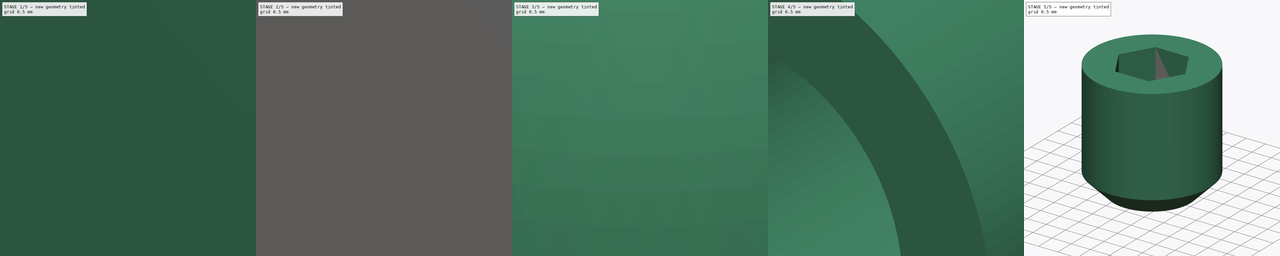
[diagram: build sequence overview — one tinted view per stage of 5, left to right]
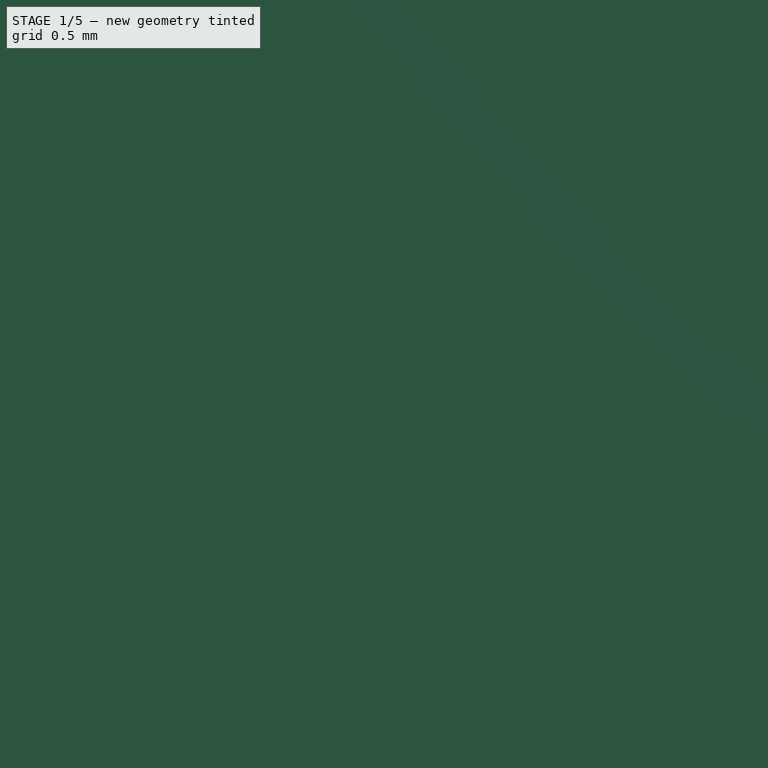
[diagram: stage 1 of 5 — iso view after this stage's code; geometry added in this stage tinted green]
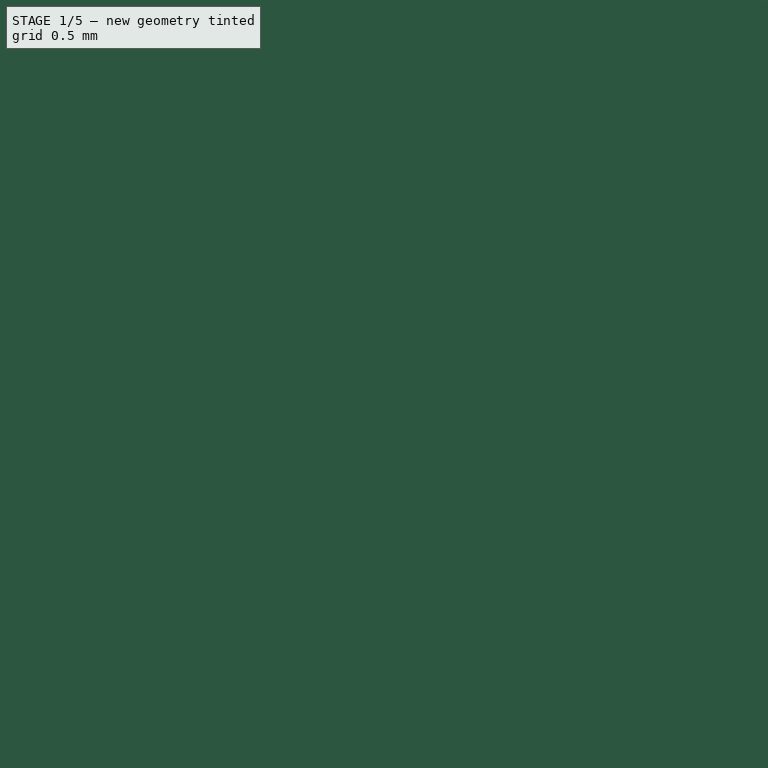
[diagram: stage 1 of 5 — front view after this stage's code; geometry added in this stage tinted green]
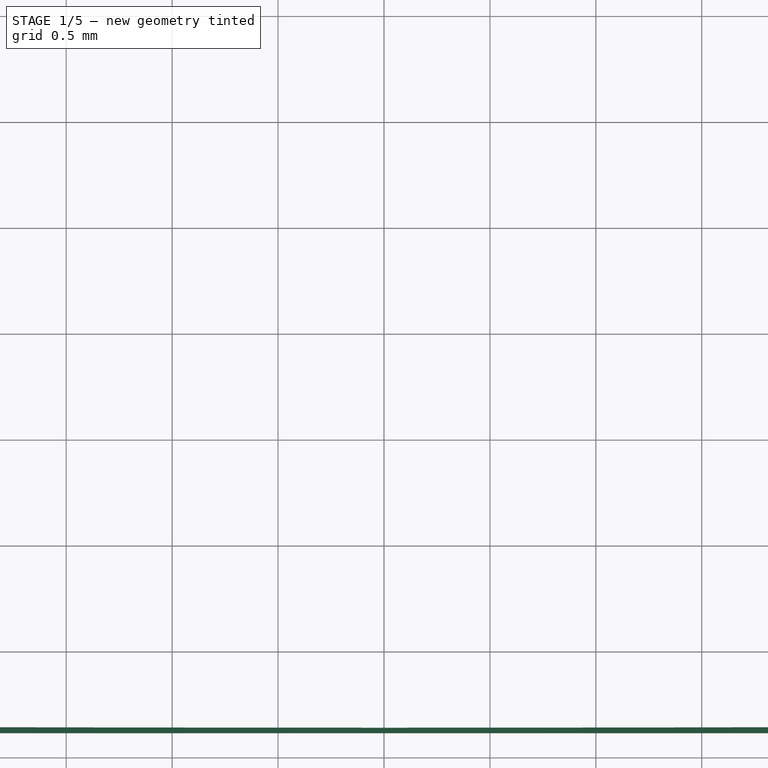
[diagram: stage 1 of 5 — top view after this stage's code; geometry added in this stage tinted green]
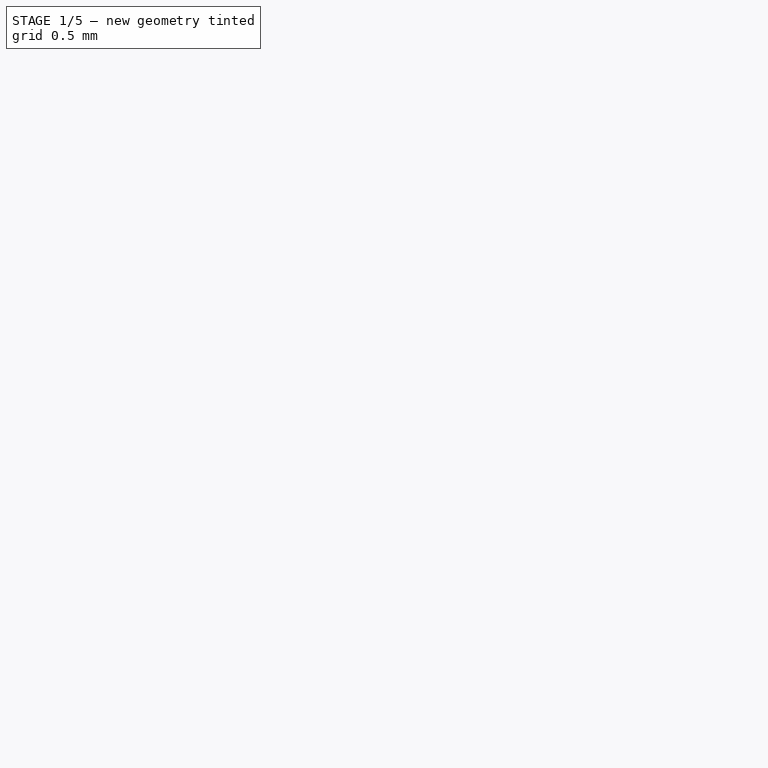
[diagram: stage 1 of 5 — right view after this stage's code; geometry added in this stage tinted green]
FCSTD DOCUMENT  (FreeCAD 2022.709R28846 (Git))
Label: KP08
License: All rights reserved
LicenseURL: http://en.wikipedia.org/wiki/All_rights_reserved
objects: Sketcher::SketchObject×18, PartDesign::Pocket×11, PartDesign::Mirrored×3, PartDesign::Body×3, PartDesign::SubShapeBinder×3, PartDesign::Pad×2, PartDesign::Chamfer×2, PartDesign::Groove×2, PartDesign::Revolution×2, PartDesign::Hole×1, PartDesign::Plane×1, PartDesign::PolarPattern×1, App::Link×1, App::Part×1
note: 97 computed .brp shape members not serialized (recipe doc carries the construction recipe); baked Part::Feature solids carry a one-line shape summary decoded from their .brp

FEATURE [Sketcher::SketchObject] Sketch
  ArcFitTolerance = 1e-06
  AttachmentSupport = -> [XZ_Plane]
  FullyConstrained = true
  MapMode = 5
  Placement = pos=(0,0,0) rot=(1,0,0;1.5708rad)
  Support = -> [XZ_Plane]
  TreeRank = 14
  sketch-geometry (9):
    g0: LineSegment StartX=-27.5 StartY=0 StartZ=0 EndX=27.5 EndY=0 EndZ=0
    g1: LineSegment StartX=27.5 StartY=0 StartZ=0 EndX=27.5 EndY=5 EndZ=0
    g2: LineSegment StartX=27.5 StartY=5 StartZ=0 EndX=14.5 EndY=5 EndZ=0
    g3: LineSegment StartX=14.5 StartY=5 StartZ=0 EndX=13.4407 EndY=16.264 EndZ=0
    g4: LineSegment StartX=-13.4407 StartY=16.264 StartZ=0 EndX=-14.5 EndY=5 EndZ=0
    g5: LineSegment StartX=-14.5 StartY=5 StartZ=0 EndX=-27.5 EndY=5 EndZ=0
    g6: LineSegment StartX=-27.5 StartY=5 StartZ=0 EndX=-27.5 EndY=0 EndZ=0
    g7: ArcOfCircle CenterX=2e-16 CenterY=15 CenterZ=0 NormalX=0 NormalY=0 NormalZ=1 AngleXU=0 Radius=13.5 StartAngle=0.0937653 EndAngle=3.04783
    g8: GeomPoint [constr] X=0 Y=28.5 Z=0
  constraints (24):
    c: PointOnObject(g0,g-1)
    c: PointOnObject(g0,g-1)
    c: Coincident(g0,g1)
    c: Vertical(g1)
    c: Coincident(g1,g2)
    c: Horizontal(g2)
    c: Coincident(g2,g3)
    c: Coincident(g4,g5)
    c: Coincident(g5,g6)
    c: Coincident(g6,g0)
    c: Vertical(g6)
    c: Coincident(g7,g4)
    c: Coincident(g7,g3)
    c: Tangent(g7,g3)
    c: Symmetric(g4,g3,g-2)
    c: Symmetric(g5,g1,g-2)
    c: DistanceX(g0,g0) = 55
    c: PointOnObject(g8,g7)
    c: PointOnObject(g8,g-2)
    c: DistanceY(g0,g8) = 28.5
    c: Symmetric(g4,g2,g-2)
    c: DistanceY(g1,g1) = 5
    c: DistanceX(g4,g2) = 29
    c: Diameter(g7) = 27
FEATURE [PartDesign::Pad] Pad
  ClaimChildren = false
  Direction = (1,1,1)
  Fit = 0
  FitJoin = 0
  InnerFit = 0
  InnerFitJoin = 0
  InnerTaperAngle = 0
  InnerTaperAngleRev = 0
  Length = 13
  Length2 = 100
  Linearize = true
  Midplane = true
  NewSolid = false
  Placement = pos=(0,0,0) rot=(1,0,0;1.5708rad)
  Profile = -> Sketch
  Suppress = false
  TreeRank = 15
  Type = 0
  _ProfileBasedVersion = 1
FEATURE [Sketcher::SketchObject] Sketch001
  ArcFitTolerance = 1e-06
  AttachmentSupport = -> [YZ_Plane]
  ExternalGeometry = -> [Pad]
  FullyConstrained = true
  MapMode = 5
  Placement = pos=(0,0,0) rot=(0.57735,0.57735,0.57735;2.0944rad)
  Support = -> [YZ_Plane]
  TreeRank = 16
  sketch-geometry (4):
    g0: LineSegment StartX=-6.5 StartY=5 StartZ=0 EndX=-4.75 EndY=16.264 EndZ=0
    g1: LineSegment StartX=-4.75 StartY=16.264 StartZ=0 EndX=-4.75 EndY=28.5 EndZ=0
    g2: LineSegment StartX=-4.75 StartY=28.5 StartZ=0 EndX=-6.5 EndY=28.5 EndZ=0
    g3: LineSegment StartX=-6.5 StartY=28.5 StartZ=0 EndX=-6.5 EndY=5 EndZ=0
  constraints (10):
    c: Coincident(g0,g-4)
    c: Coincident(g0,g1)
    c: Vertical(g1)
    c: Coincident(g1,g2)
    c: Coincident(g2,g-3)
    c: Horizontal(g2)
    c: Coincident(g2,g3)
    c: Coincident(g3,g0)
    c: Horizontal(g-3,g0)
    c: DistanceX(g1,g-1) = 4.75
FEATURE [PartDesign::Pocket] Pocket
  BaseFeature = -> Pad
  ClaimChildren = false
  Fit = 0
  FitJoin = 0
  InnerFit = 0
  InnerFitJoin = 0
  InnerTaperAngle = 0
  InnerTaperAngleRev = 0
  Length = 5
  Length2 = 100
  Linearize = true
  Midplane = true
  NewSolid = false
  Placement = pos=(0,0,0) rot=(1,0,0;1.5708rad)
  Profile = -> Sketch001
  Refine = true
  Suppress = false
  TreeRank = 17
  Type = 1
  _ProfileBasedVersion = 1
FEATURE [Sketcher::SketchObject] Sketch002
  ArcFitTolerance = 1e-06
  AttachmentSupport = -> [Pocket]
  ExternalGeometry = -> [Pocket]
  FullyConstrained = true
  MapMode = 5
  Placement = pos=(0,-6.5,7.2e-15) rot=(1,0,0;1.5708rad)
  Support = -> [Pocket]
  TreeRank = 18
  sketch-geometry (4):
    g0: ArcOfCircle CenterX=2e-16 CenterY=15 CenterZ=0 NormalX=0 NormalY=0 NormalZ=1 AngleXU=0 Radius=12 StartAngle=0.0937681 EndAngle=3.04782
    g1: LineSegment StartX=-11.9473 StartY=16.1236 StartZ=0 EndX=-13.4636 EndY=0 EndZ=0
    g2: LineSegment StartX=13.4636 StartY=0 StartZ=0 EndX=11.9473 EndY=16.1236 EndZ=0
    g3: LineSegment StartX=-13.4636 StartY=0 StartZ=0 EndX=13.4636 EndY=0 EndZ=0
  constraints (11):
    c: Coincident(g0,g-3)
    c: Diameter(g0) = 24
    c: Coincident(g1,g0)
    c: PointOnObject(g1,g-1)
    c: Coincident(g2,g0)
    c: Symmetric(g0,g0,g-2)
    c: Tangent(g1,g0)
    c: Parallel(g-4,g1)
    c: Symmetric(g1,g2,g-2)
    c: Coincident(g3,g1)
    c: Coincident(g3,g2)
FEATURE [PartDesign::Pocket] Pocket001
  BaseFeature = -> Pocket
  ClaimChildren = false
  Fit = 0
  FitJoin = 0
  InnerFit = 0
  InnerFitJoin = 0
  InnerTaperAngle = 0
  InnerTaperAngleRev = 0
  Length = 0
  Length2 = 100
  Linearize = true
  NewSolid = false
  Placement = pos=(0,0,0) rot=(1,0,0;1.5708rad)
  Profile = -> Sketch002
  Refine = true
  Suppress = false
  TreeRank = 19
  Type = 3
  UpToFace = -> Pocket [Face12]
  _ProfileBasedVersion = 1
FEATURE [Sketcher::SketchObject] Sketch003
  ArcFitTolerance = 1e-06
  AttachmentSupport = -> [Pocket001]
  ExternalGeometry = -> [Pocket001]
  FullyConstrained = false
  MapMode = 5
  Placement = pos=(-8e-16,-4.75,5.8e-15) rot=(1,0,0;1.5708rad)
  Support = -> [Pocket001]
  TreeRank = 20
  sketch-geometry (1):
    g0: Circle CenterX=0 CenterY=15.2964 CenterZ=0 NormalX=0 NormalY=0 NormalZ=1 AngleXU=0 Radius=11.9723
  constraints (2):
    c: PointOnObject(g0,g-2)
    c: Tangent(g-4,g0)
FEATURE [PartDesign::Pocket] Pocket002
  BaseFeature = -> Pocket001
  ClaimChildren = false
  Fit = 0
  FitJoin = 0
  InnerFit = 0
  InnerFitJoin = 0
  InnerTaperAngle = 0
  InnerTaperAngleRev = 0
  Length = 0.9
  Length2 = 100
  Linearize = true
  NewSolid = false
  Placement = pos=(0,0,0) rot=(1,0,0;1.5708rad)
  Profile = -> Sketch003
  Refine = true
  Suppress = false
  TreeRank = 21
  Type = 0
  _ProfileBasedVersion = 1
FEATURE [Sketcher::SketchObject] Sketch004
  ArcFitTolerance = 1e-06
  AttachmentSupport = -> [Pocket002]
  ExternalGeometry = -> [Pocket002]
  FullyConstrained = true
  MapMode = 5
  Placement = pos=(-8e-16,-4.75,7.9e-15) rot=(1,0,0;1.5708rad)
  Support = -> [Pocket002]
  TreeRank = 22
  sketch-geometry (4):
    g0: ArcOfCircle CenterX=1e-15 CenterY=15 CenterZ=0 NormalX=0 NormalY=0 NormalZ=1 AngleXU=0 Radius=13.5 StartAngle=3.52371 EndAngle=5.90107
    g1: LineSegment StartX=-12.5264 StartY=9.96607 StartZ=0 EndX=-13.4636 EndY=3.6e-15 EndZ=0
    g2: LineSegment StartX=-13.4636 StartY=3.6e-15 StartZ=0 EndX=13.4636 EndY=-3.6e-15 EndZ=0
    g3: LineSegment StartX=13.4636 StartY=-3.6e-15 StartZ=0 EndX=12.5264 EndY=9.96607 EndZ=0
  constraints (10):
    c: Coincident(g0,g-3)
    c: Equal(g-3,g0)
    c: Symmetric(g0,g0,g-2)
    c: Coincident(g0,g1)
    c: Coincident(g1,g2)
    c: Coincident(g2,g3)
    c: Coincident(g3,g0)
    c: Symmetric(g1,g2,g-1)
    c: Coincident(g1,g-4)
    c: Parallel(g1,g-4)
FEATURE [PartDesign::Pocket] Pocket003
  BaseFeature = -> Pocket002
  ClaimChildren = false
  Fit = 0
  FitJoin = 0
  InnerFit = 0
  InnerFitJoin = 0
  InnerTaperAngle = 0
  InnerTaperAngleRev = 0
  Length = 0
  Length2 = 100
  Linearize = true
  NewSolid = false
  Offset = -1.4
  Placement = pos=(0,0,0) rot=(1,0,0;1.5708rad)
  Profile = -> Sketch004
  Refine = true
  Suppress = false
  TreeRank = 23
  Type = 3
  UpToFace = -> XZ_Plane
  _ProfileBasedVersion = 1
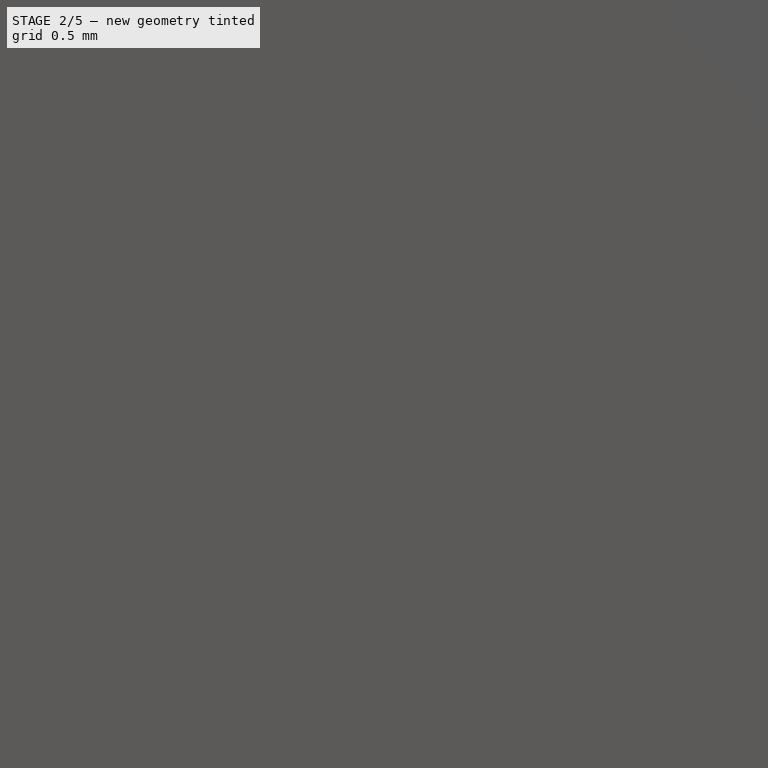
[diagram: stage 2 of 5 — iso view after this stage's code; geometry added in this stage tinted green]
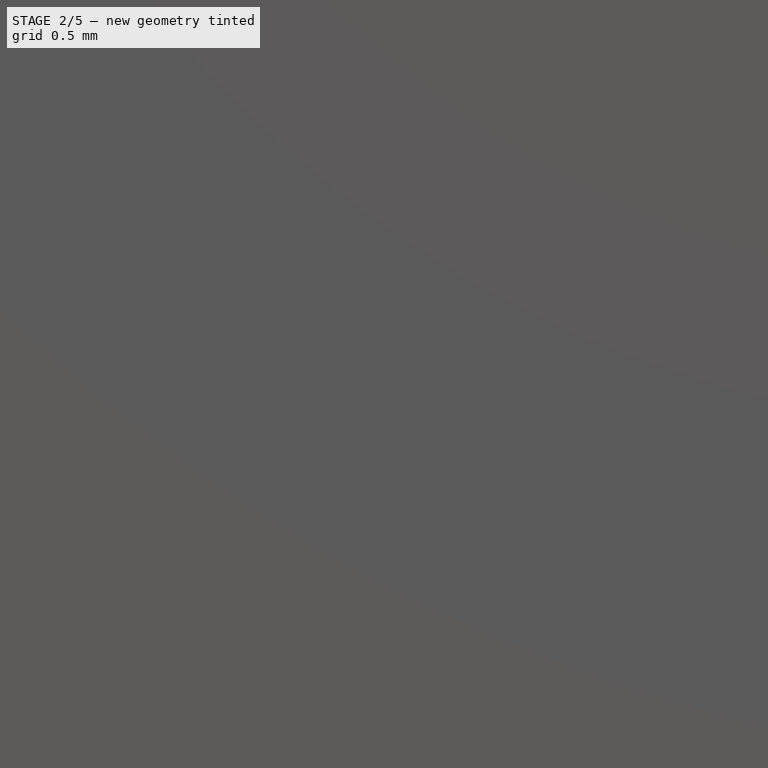
[diagram: stage 2 of 5 — front view after this stage's code; geometry added in this stage tinted green]
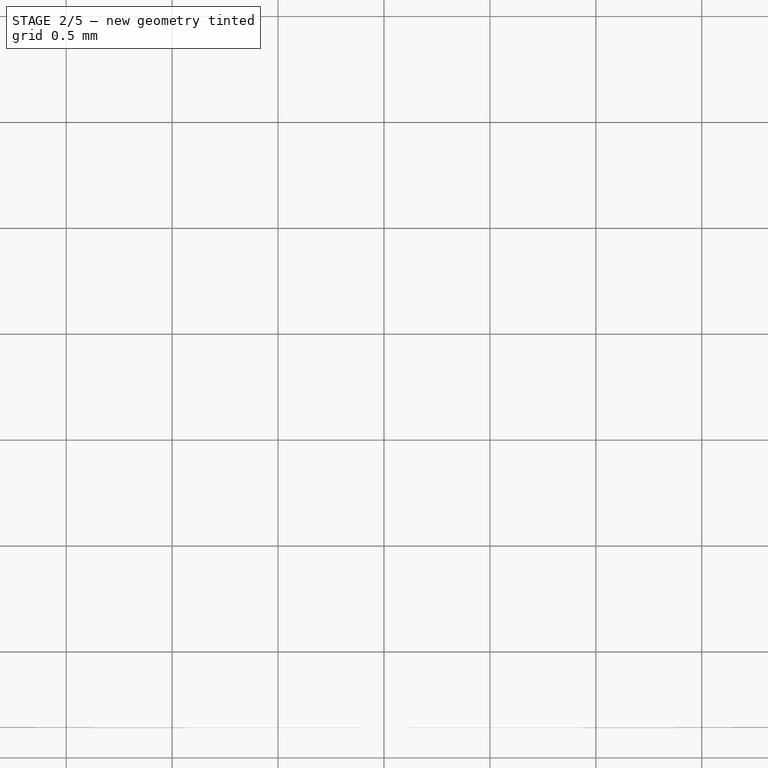
[diagram: stage 2 of 5 — top view after this stage's code; geometry added in this stage tinted green]
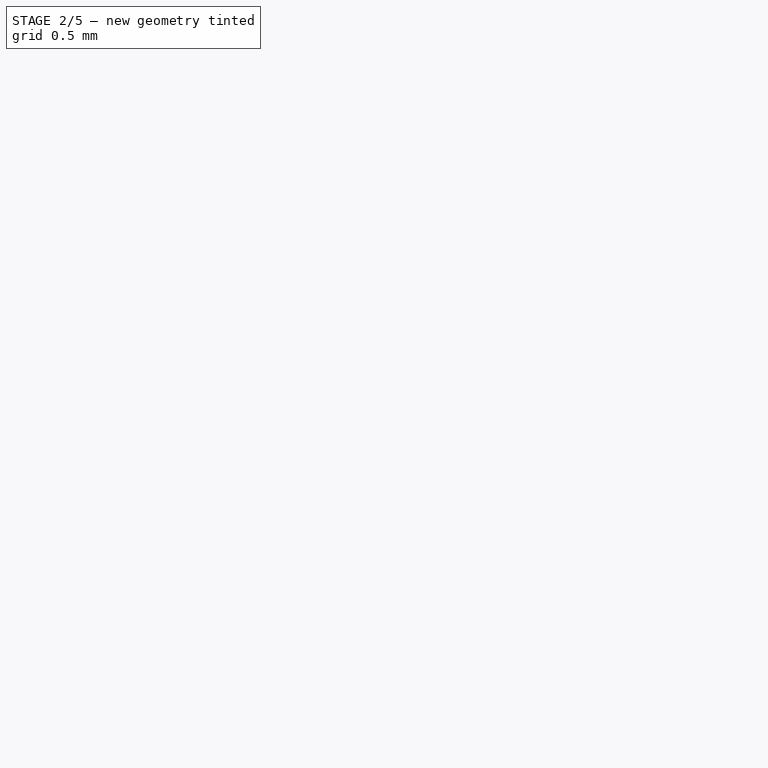
[diagram: stage 2 of 5 — right view after this stage's code; geometry added in this stage tinted green]
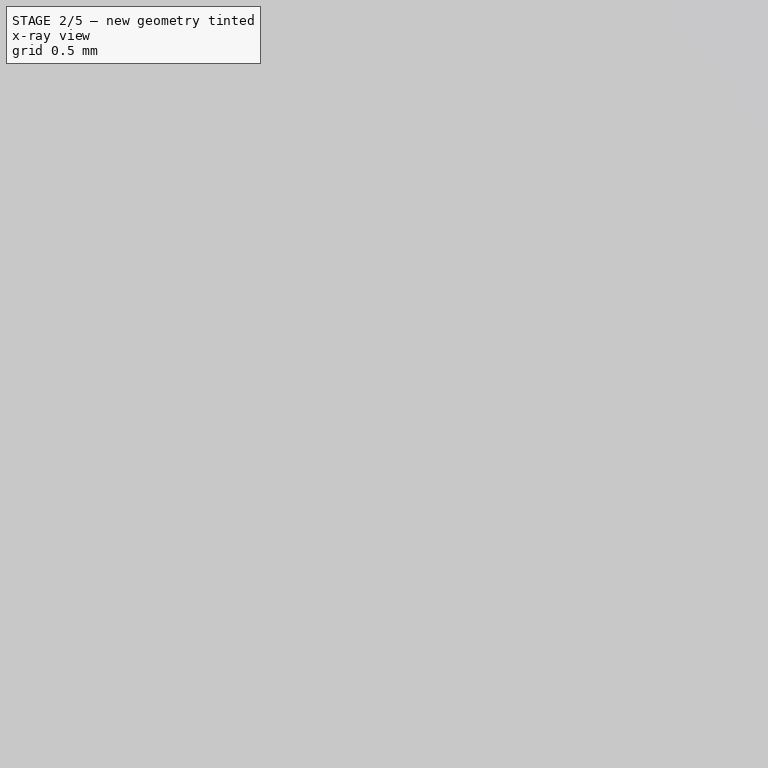
[diagram: stage 2 of 5 — x-ray composite at the iso view; earlier geometry ghosted, this stage's added geometry solid]
FEATURE [PartDesign::Mirrored] Mirrored
  BaseFeature = -> Pocket003
  CopyShape = false
  MirrorPlane = -> XZ_Plane
  NewSolid = false
  OriginalSubs = -> [Pocket003,Pocket002,Pocket001,Pocket]
  Originals = -> [Pocket003,Pocket002,Pocket001,Pocket]
  ParallelTransform = true
  Placement = pos=(0,0,0) rot=(1,0,0;1.5708rad)
  Refine = true
  SubTransform = true
  Suppress = false
  TreeRank = 24
FEATURE [Sketcher::SketchObject] Sketch005
  ArcFitTolerance = 1e-06
  AttachmentSupport = -> [Mirrored]
  ExternalGeometry = -> [Mirrored]
  FullyConstrained = true
  MapMode = 5
  Placement = pos=(0,-1.4,6e-16) rot=(1,0,0;1.5708rad)
  Support = -> [Mirrored]
  TreeRank = 25
  sketch-geometry (4):
    g0: LineSegment StartX=-13.3225 StartY=1.5 StartZ=0 EndX=13.3225 EndY=1.5 EndZ=0
    g1: LineSegment StartX=-13.4636 StartY=0 StartZ=0 EndX=13.4636 EndY=0 EndZ=0
    g2: LineSegment StartX=-13.3225 StartY=1.5 StartZ=0 EndX=-13.4636 EndY=0 EndZ=0
    g3: LineSegment StartX=13.3225 StartY=1.5 StartZ=0 EndX=13.4636 EndY=0 EndZ=0
  constraints (12):
    c: Horizontal(g0)
    c: PointOnObject(g1,g-1)
    c: Horizontal(g1)
    c: Coincident(g2,g0)
    c: Coincident(g2,g1)
    c: Coincident(g3,g0)
    c: Coincident(g3,g1)
    c: Parallel(g2,g-4)
    c: Parallel(g3,g-5)
    c: PointOnObject(g0,g-4)
    c: PointOnObject(g0,g-5)
    c: Tangent(g0,g-3)
FEATURE [PartDesign::Pocket] Pocket004
  BaseFeature = -> Mirrored
  ClaimChildren = false
  Fit = 0
  FitJoin = 0
  InnerFit = 0
  InnerFitJoin = 0
  InnerTaperAngle = 0
  InnerTaperAngleRev = 0
  Length = 5
  Length2 = 100
  Linearize = true
  NewSolid = false
  Placement = pos=(0,0,0) rot=(1,0,0;1.5708rad)
  Profile = -> Sketch005
  Refine = true
  Suppress = false
  TreeRank = 26
  Type = 1
  _ProfileBasedVersion = 1
FEATURE [Sketcher::SketchObject] Sketch006
  ArcFitTolerance = 1e-06
  AttachmentSupport = -> [Pocket004]
  ExternalGeometry = -> [Pocket004]
  FullyConstrained = true
  MapMode = 5
  Placement = pos=(0,0,0) rot=(1,0,0;3.14159rad)
  Support = -> [Pocket004]
  TreeRank = 27
  sketch-geometry (4):
    g0: LineSegment StartX=-25.5 StartY=4.5 StartZ=0 EndX=-15.4636 EndY=4.5 EndZ=0
    g1: LineSegment StartX=-15.4636 StartY=4.5 StartZ=0 EndX=-15.4636 EndY=-4.5 EndZ=0
    g2: LineSegment StartX=-15.4636 StartY=-4.5 StartZ=0 EndX=-25.5 EndY=-4.5 EndZ=0
    g3: LineSegment StartX=-25.5 StartY=-4.5 StartZ=0 EndX=-25.5 EndY=4.5 EndZ=0
  constraints (11):
    c: Coincident(g0,g1)
    c: Coincident(g1,g2)
    c: Coincident(g2,g3)
    c: Coincident(g3,g0)
    c: Horizontal(g0)
    c: Horizontal(g2)
    c: Vertical(g3)
    c: Symmetric(g0,g1,g-1)
    c: DistanceX(g0,g-3) = 2
    c: DistanceY(g0,g-3) = 2
    c: DistanceX(g-4,g2) = 2
FEATURE [PartDesign::Pocket] Pocket005
  BaseFeature = -> Pocket004
  ClaimChildren = false
  Fit = 0
  FitJoin = 0
  InnerFit = 0
  InnerFitJoin = 0
  InnerTaperAngle = 0
  InnerTaperAngleRev = 0
  Length = 3
  Length2 = 100
  Linearize = true
  NewSolid = false
  Placement = pos=(0,0,0) rot=(1,0,0;1.5708rad)
  Profile = -> Sketch006
  Suppress = false
  TreeRank = 28
  Type = 0
  _ProfileBasedVersion = 1
FEATURE [Sketcher::SketchObject] Sketch007
  ArcFitTolerance = 1e-06
  AttachmentSupport = -> [Pocket005]
  FullyConstrained = true
  MapMode = 5
  Placement = pos=(0,1.67e-14,5) rot=(0,0,1;3.14159rad)
  Support = -> [Pocket005]
  TreeRank = 29
  sketch-geometry (1):
    g0: Circle CenterX=21 CenterY=0 CenterZ=0 NormalX=0 NormalY=0 NormalZ=1 AngleXU=0 Radius=2.75
  constraints (3):
    c: PointOnObject(g0,g-1)
    c: Diameter(g0) = 5.5
    c: DistanceX(g-1,g0) = 21
FEATURE [PartDesign::Hole] Hole
  BaseFeature = -> Pocket005
  ClaimChildren = false
  CustomThreadClearance = 0
  Depth = 25
  DepthType = 1
  Diameter = 5.5
  DrillForDepth = false
  DrillPoint = 1
  DrillPointAngle = 118
  Fit = 0
  FitJoin = 0
  HoleCutCountersinkAngle = 90
  HoleCutCustomValues = false
  HoleCutDepth = 0
  HoleCutDiameter = 6.1
  HoleCutType = 0
  InnerFit = 0
  InnerFitJoin = 0
  ModelThread = false
  NewSolid = false
  Placement = pos=(0,0,0) rot=(1,0,0;1.5708rad)
  Profile = -> Sketch007
  Suppress = false
  Tapered = false
  TaperedAngle = 90
  ThreadClass = 0
  ThreadDepth = 127.86
  ThreadDepthType = 0
  ThreadDirection = 0
  ThreadFit = 0
  ThreadSize = 0
  ThreadType = 0
  Threaded = false
  TreeRank = 30
  UseCustomThreadClearance = false
  _ProfileBasedVersion = 1
FEATURE [PartDesign::Chamfer] Chamfer
  Angle = 45
  Base = -> Hole [Edge88,Edge85]
  BaseFeature = -> Hole
  ChamferType = 0
  FlipDirection = false
  NewSolid = false
  Placement = pos=(0,0,0) rot=(1,0,0;1.5708rad)
  Size = 2
  Size2 = 1
  SupportTransform = false
  Suppress = false
  TreeRank = 31
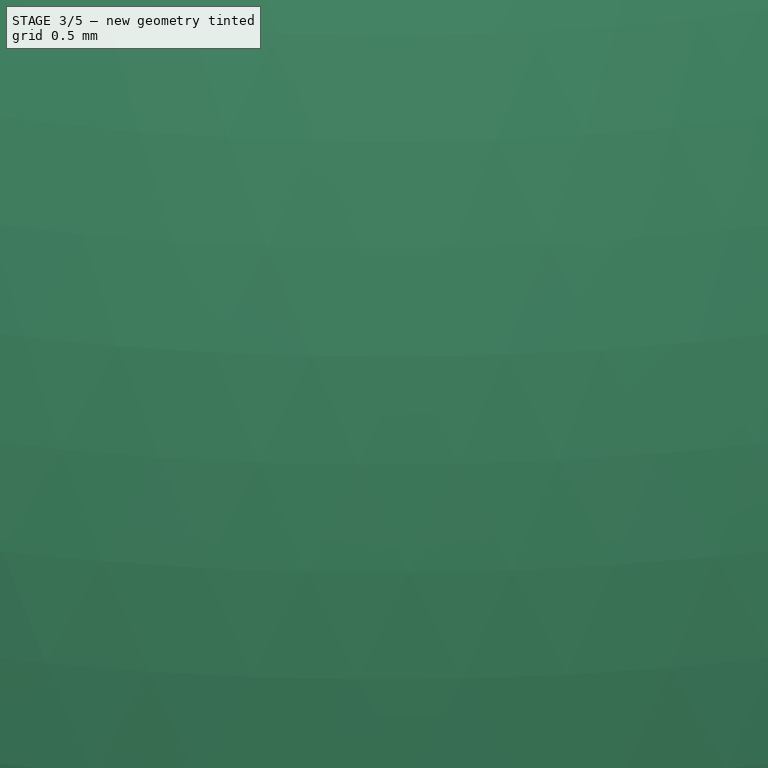
[diagram: stage 3 of 5 — iso view after this stage's code; geometry added in this stage tinted green]
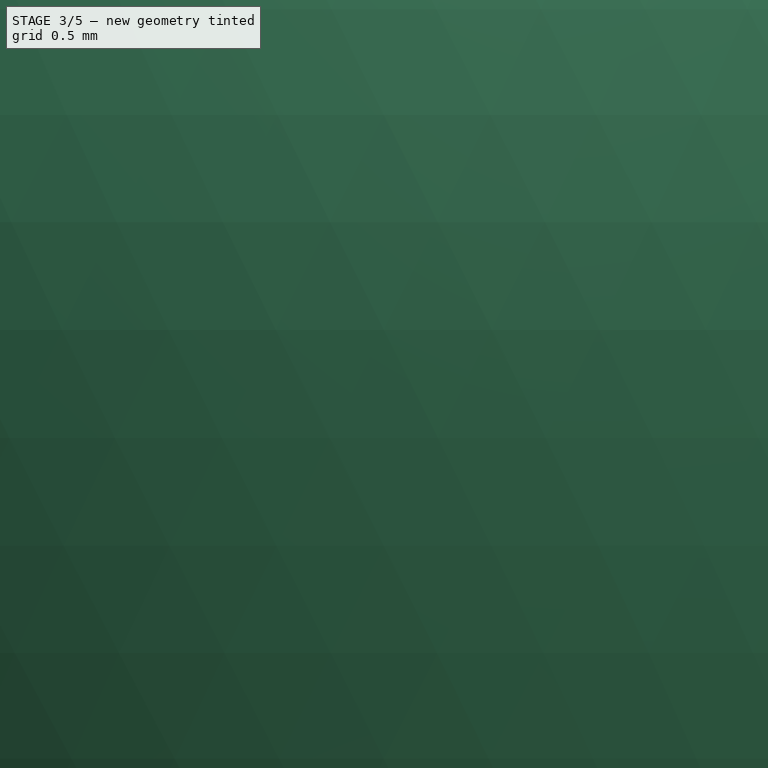
[diagram: stage 3 of 5 — front view after this stage's code; geometry added in this stage tinted green]
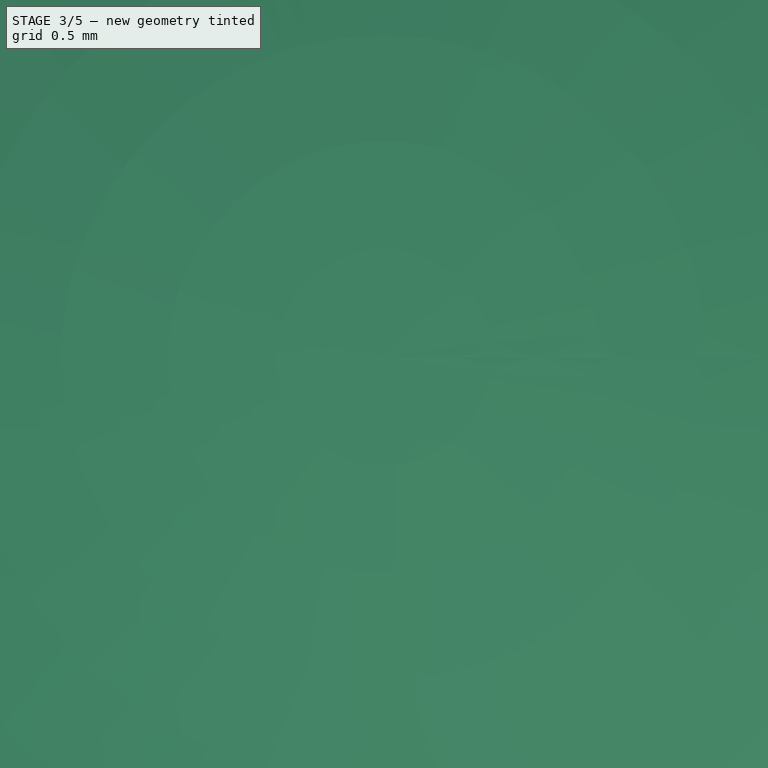
[diagram: stage 3 of 5 — top view after this stage's code; geometry added in this stage tinted green]
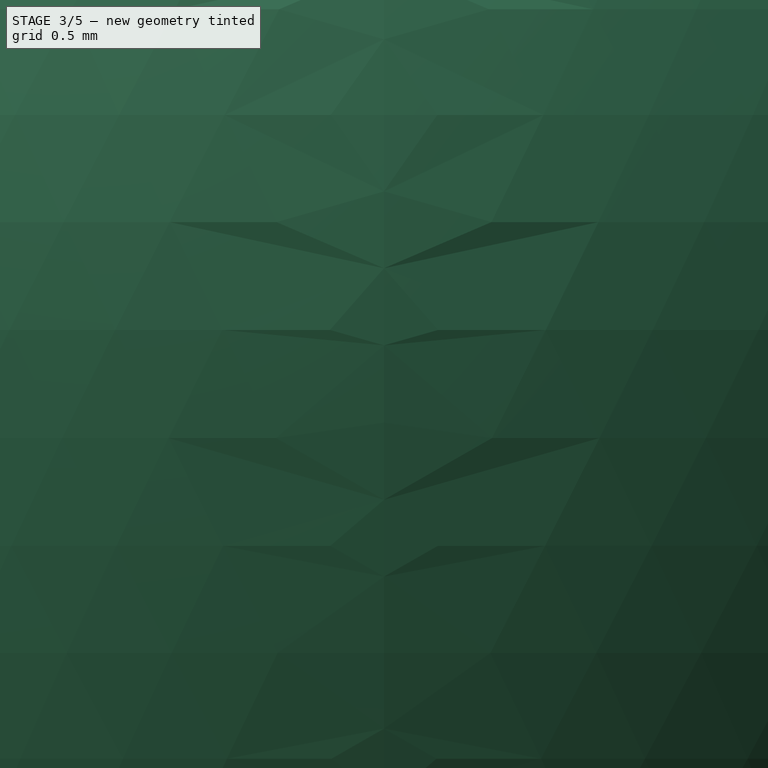
[diagram: stage 3 of 5 — right view after this stage's code; geometry added in this stage tinted green]
FEATURE [PartDesign::Mirrored] Mirrored001
  BaseFeature = -> Chamfer
  CopyShape = false
  MirrorPlane = -> YZ_Plane
  NewSolid = false
  OriginalSubs = -> [Chamfer,Hole,Pocket005]
  Originals = -> [Chamfer,Hole,Pocket005]
  ParallelTransform = true
  Placement = pos=(0,0,0) rot=(1,0,0;1.5708rad)
  SubTransform = true
  Suppress = false
  TreeRank = 32
FEATURE [Sketcher::SketchObject] Sketch008
  ArcFitTolerance = 1e-06
  AttachmentSupport = -> [Mirrored001]
  ExternalGeometry = -> [Mirrored001]
  FullyConstrained = true
  MapMode = 5
  Placement = pos=(-6e-16,-3.85,1.28e-14) rot=(1,0,0;1.5708rad)
  Support = -> [Mirrored001]
  TreeRank = 33
  sketch-geometry (5):
    g0: ArcOfCircle CenterX=-1e-16 CenterY=15.2964 CenterZ=0 NormalX=0 NormalY=0 NormalZ=1 AngleXU=0 Radius=11.9723 StartAngle=2.75626 EndAngle=3.52693
    g1: LineSegment StartX=-11.0944 StartY=19.7964 StartZ=0 EndX=11.0944 EndY=19.7964 EndZ=0
    g2: LineSegment [constr] StartX=-11.9723 StartY=15.2964 StartZ=0 EndX=11.9723 EndY=15.2964 EndZ=0
    g3: LineSegment StartX=-11.0944 StartY=10.7964 StartZ=0 EndX=11.0944 EndY=10.7964 EndZ=0
    g4: ArcOfCircle CenterX=-1e-16 CenterY=15.2964 CenterZ=0 NormalX=0 NormalY=0 NormalZ=1 AngleXU=0 Radius=11.9723 StartAngle=5.89785 EndAngle=6.66852
  constraints (15):
    c: Coincident(g0,g-3)
    c: Horizontal(g1)
    c: PointOnObject(g2,g0)
    c: Horizontal(g2)
    c: Symmetric(g2,g2,g0)
    c: Horizontal(g3)
    c: Symmetric(g1,g3,g2)
    c: Coincident(g0,g1)
    c: Coincident(g4,g1)
    c: Equal(g0,g4)
    c: PointOnObject(g0,g3)
    c: Coincident(g4,g3)
    c: Coincident(g0,g4)
    c: Equal(g0,g-3)
    c: DistanceY(g3,g1) = 9
FEATURE [PartDesign::Pocket] Pocket006
  BaseFeature = -> Mirrored001
  ClaimChildren = false
  Fit = 0
  FitJoin = 0
  InnerFit = 0
  InnerFitJoin = 0
  InnerTaperAngle = 0
  InnerTaperAngleRev = 0
  Length = 0
  Length2 = 100
  Linearize = true
  NewSolid = false
  Placement = pos=(0,0,0) rot=(1,0,0;1.5708rad)
  Profile = -> Sketch008
  Refine = true
  Suppress = false
  TreeRank = 34
  Type = 3
  UpToFace = -> XZ_Plane
  _ProfileBasedVersion = 1
FEATURE [Sketcher::SketchObject] Sketch009
  ArcFitTolerance = 1e-06
  AttachmentSupport = -> [Pocket006]
  ExternalGeometry = -> [Pocket006]
  FullyConstrained = true
  MapMode = 5
  Placement = pos=(0,0,0) rot=(1,0,0;1.5708rad)
  Support = -> [Pocket006]
  TreeRank = 47
  sketch-geometry (2):
    g0: ArcOfCircle CenterX=-1e-16 CenterY=15.2964 CenterZ=0 NormalX=0 NormalY=0 NormalZ=1 AngleXU=0 Radius=11 StartAngle=4.71239 EndAngle=7.85398
    g1: LineSegment StartX=0 StartY=26.2964 StartZ=0 EndX=0 EndY=4.29637 EndZ=0
  constraints (6):
    c: Vertical(g1)
    c: PointOnObject(g1,g-2)
    c: Coincident(g-3,g0)
    c: Coincident(g0,g1)
    c: Coincident(g0,g1)
    c: Diameter(g0) = 22
FEATURE [PartDesign::Groove] Groove
  Angle = 360
  Axis = (0,4e-16,1)
  Base = (0,0,0)
  BaseFeature = -> Pocket006
  ClaimChildren = false
  Fit = 0
  FitJoin = 0
  InnerFit = 0
  InnerFitJoin = 0
  NewSolid = false
  Placement = pos=(0,0,0) rot=(1,0,0;1.5708rad)
  Profile = -> Sketch009
  ReferenceAxis = -> Sketch009 [V_Axis]
  Refine = true
  Suppress = false
  TreeRank = 48
  _ProfileBasedVersion = 1
FEATURE [PartDesign::Body] Body  label="KP08Housing"
  AutoGroupSolids = false
  ClaimAllChildren = false
  ExportMode = 0
  Group = -> [Sketch,Pad,Sketch001,Pocket,Sketch002,Pocket001,Sketch003,Pocket002,Sketch004,Pocket003,Mirrored,Sketch005,Pocket004,Sketch006,Pocket005,Sketch007,Hole,Chamfer,Mirrored001,Sketch008,Pocket006,Sketch009,Groove]
  Origin = -> Origin001
  Tip = -> Groove
  TreeRank = 13
  _ExportChildren = -> [Pad,Pocket,Pocket001,Pocket002,Pocket003,Mirrored,Pocket004,Pocket005,Hole,Chamfer,Mirrored001,Pocket006,Groove]
  _GroupVersion = 1
FEATURE [PartDesign::SubShapeBinder] Binder  label="Binder(Groove)..."
  BindCopyOnChange = 0
  BindMode = 0
  ClaimChildren = false
  Context = -> Part [Body001.Binder.]
  FillStyle = 0
  Fuse = false
  MakeFace = true
  OffsetFill = false
  OffsetIntersection = false
  OffsetJoinType = 0
  OffsetOpenResult = false
  PartialLoad = false
  Relative = true
  Support = -> [Body[Groove.Edge24,Groove.Face4]]
  TreeRank = 59
  _Version = 8
FEATURE [Sketcher::SketchObject] Sketch010
  ArcFitTolerance = 1e-06
  AttachmentSupport = -> [XZ_Plane002]
  ExternalGeometry = -> [Binder]
  FullyConstrained = true
  MapMode = 5
  Placement = pos=(0,0,0) rot=(1,0,0;1.5708rad)
  Support = -> [XZ_Plane002]
  TreeRank = 60
  sketch-geometry (2):
    g0: ArcOfCircle CenterX=-1e-16 CenterY=15.2964 CenterZ=0 NormalX=0 NormalY=0 NormalZ=1 AngleXU=0 Radius=11 StartAngle=4.71239 EndAngle=7.85398
    g1: LineSegment StartX=3.3e-15 StartY=26.2964 StartZ=0 EndX=0 EndY=4.29637 EndZ=0
  constraints (6):
    c: Coincident(g0,g-3)
    c: Equal(g-3,g0)
    c: PointOnObject(g0,g-2)
    c: PointOnObject(g0,g-2)
    c: Coincident(g1,g0)
    c: Coincident(g1,g0)
FEATURE [PartDesign::Revolution] Revolution
  Angle = 360
  Axis = (0,2e-16,1)
  Base = (0,0,0)
  ClaimChildren = false
  Fit = 0
  FitJoin = 0
  InnerFit = 0
  InnerFitJoin = 0
  NewSolid = false
  Placement = pos=(0,0,0) rot=(1,0,0;1.5708rad)
  Profile = -> Sketch010
  ReferenceAxis = -> Sketch010 [V_Axis]
  Reversed = true
  Suppress = false
  TreeRank = 61
  _ProfileBasedVersion = 1
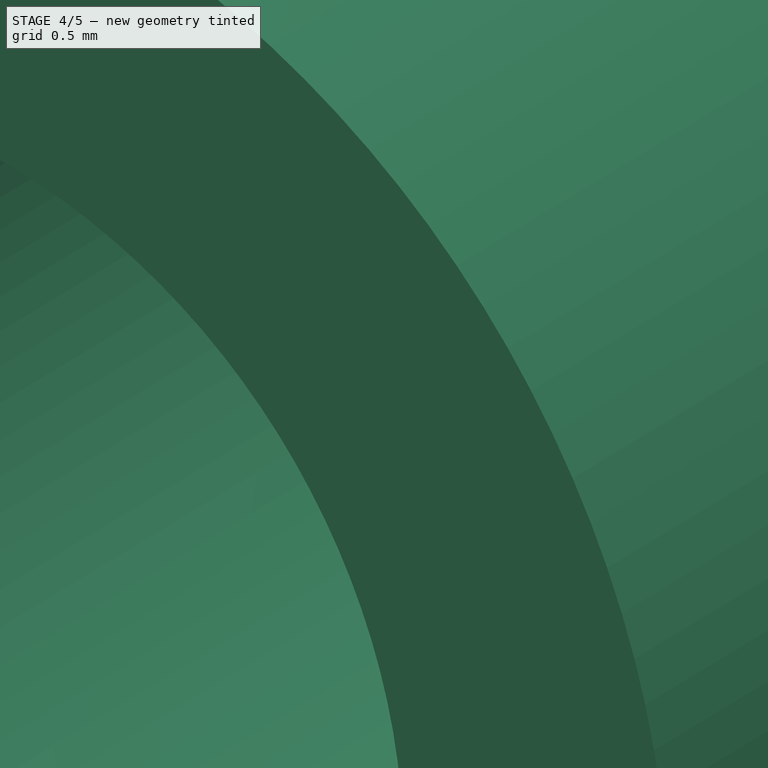
[diagram: stage 4 of 5 — iso view after this stage's code; geometry added in this stage tinted green]
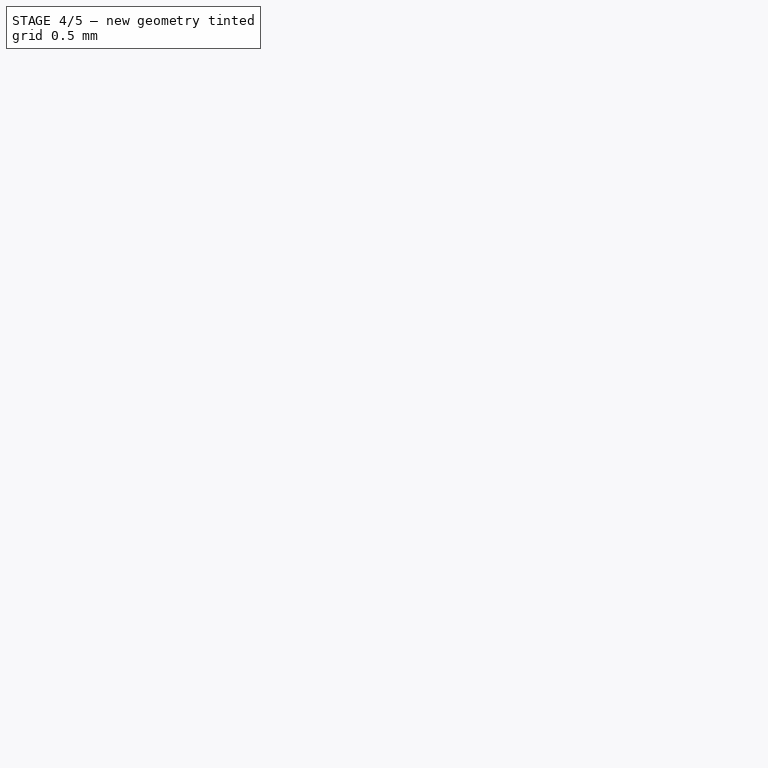
[diagram: stage 4 of 5 — front view after this stage's code; geometry added in this stage tinted green]
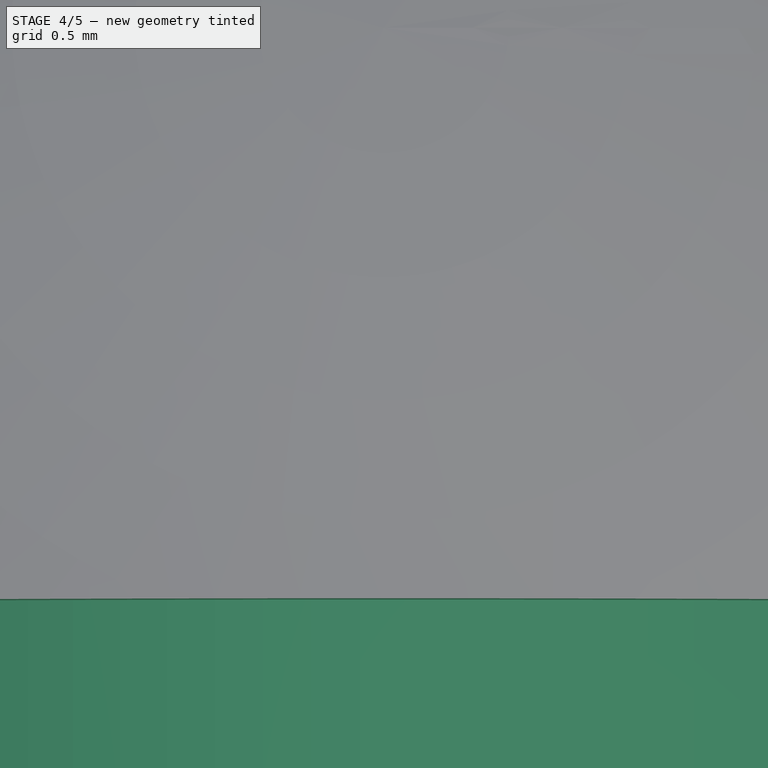
[diagram: stage 4 of 5 — top view after this stage's code; geometry added in this stage tinted green]
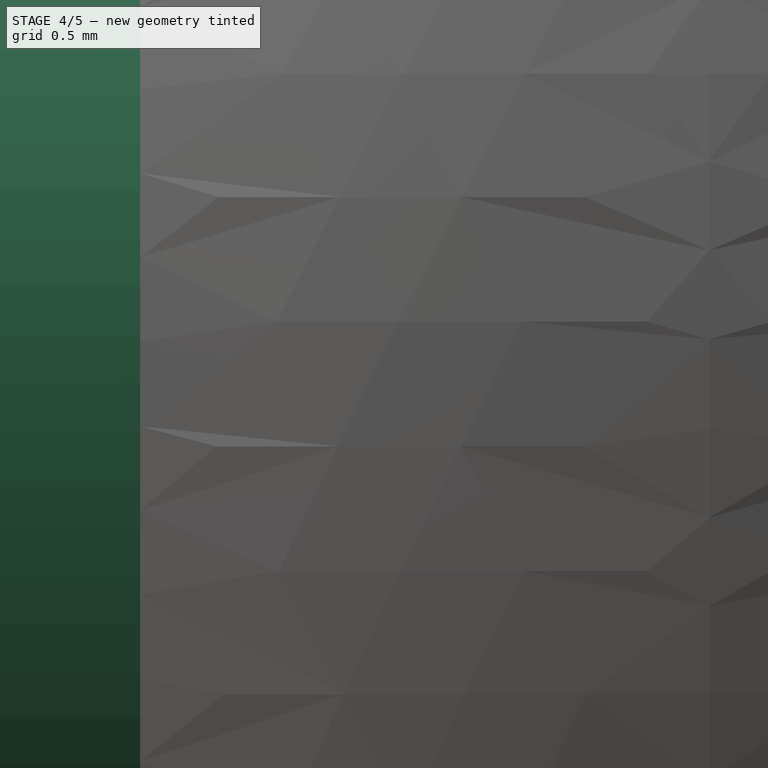
[diagram: stage 4 of 5 — right view after this stage's code; geometry added in this stage tinted green]
FEATURE [Sketcher::SketchObject] Sketch011
  ArcFitTolerance = 1e-06
  AttachmentSupport = -> [YZ_Plane002]
  FullyConstrained = true
  MapMode = 5
  Placement = pos=(0,0,0) rot=(0.57735,0.57735,0.57735;2.0944rad)
  Support = -> [YZ_Plane002]
  TreeRank = 62
  sketch-geometry (4):
    g0: LineSegment StartX=-12 StartY=30 StartZ=0 EndX=-3.5 EndY=30 EndZ=0
    g1: LineSegment StartX=-3.5 StartY=30 StartZ=0 EndX=-3.5 EndY=0 EndZ=0
    g2: LineSegment StartX=-3.5 StartY=0 StartZ=0 EndX=-12 EndY=0 EndZ=0
    g3: LineSegment StartX=-12 StartY=0 StartZ=0 EndX=-12 EndY=30 EndZ=0
  constraints (12):
    c: Coincident(g0,g1)
    c: Coincident(g1,g2)
    c: Coincident(g2,g3)
    c: Coincident(g3,g0)
    c: Horizontal(g0)
    c: Horizontal(g2)
    c: Vertical(g1)
    c: Vertical(g3)
    c: DistanceX(g1,g-1) = 3.5
    c: DistanceX(g2,g-1) = 12
    c: PointOnObject(g2,g-1)
    c: DistanceY(g3,g3) = 30
FEATURE [PartDesign::Pocket] Pocket007
  BaseFeature = -> Revolution
  ClaimChildren = false
  Fit = 0
  FitJoin = 0
  InnerFit = 0
  InnerFitJoin = 0
  InnerTaperAngle = 0
  InnerTaperAngleRev = 0
  Length = 5
  Length2 = 100
  Linearize = true
  Midplane = true
  NewSolid = false
  Placement = pos=(0,0,0) rot=(1,0,0;1.5708rad)
  Profile = -> Sketch011
  Suppress = false
  TreeRank = 63
  Type = 1
  _ProfileBasedVersion = 1
FEATURE [Sketcher::SketchObject] Sketch012
  ArcFitTolerance = 1e-06
  AttachmentSupport = -> [Pocket007]
  ExternalGeometry = -> [Pocket007]
  FullyConstrained = true
  MapMode = 5
  Placement = pos=(-8e-16,-3.5,2.3e-15) rot=(1,0,0;1.5708rad)
  Support = -> [Pocket007]
  TreeRank = 64
  sketch-geometry (1):
    g0: Circle CenterX=0 CenterY=15.2964 CenterZ=0 NormalX=0 NormalY=0 NormalZ=1 AngleXU=0 Radius=6
  constraints (2):
    c: Coincident(g0,g-3)
    c: Diameter(g0) = 12
FEATURE [PartDesign::Pad] Pad001
  BaseFeature = -> Pocket007
  ClaimChildren = false
  Direction = (1,1,1)
  Fit = 0
  FitJoin = 0
  InnerFit = 0
  InnerFitJoin = 0
  InnerTaperAngle = 0
  InnerTaperAngleRev = 0
  Length = 4
  Length2 = 100
  Linearize = true
  NewSolid = false
  Placement = pos=(0,0,0) rot=(1,0,0;1.5708rad)
  Profile = -> Sketch012
  Suppress = false
  TreeRank = 65
  Type = 0
  _ProfileBasedVersion = 1
FEATURE [Sketcher::SketchObject] Sketch013
  ArcFitTolerance = 1e-06
  AttachmentSupport = -> [Pad001]
  ExternalGeometry = -> [Pad001]
  FullyConstrained = true
  MapMode = 5
  Placement = pos=(-8e-16,-3.5,3.9e-15) rot=(1,0,0;1.5708rad)
  Support = -> [Pad001]
  TreeRank = 66
  sketch-geometry (2):
    g0: Circle CenterX=0 CenterY=15.2964 CenterZ=0 NormalX=0 NormalY=0 NormalZ=1 AngleXU=0 Radius=10
    g1: Circle CenterX=0 CenterY=15.2964 CenterZ=0 NormalX=0 NormalY=0 NormalZ=1 AngleXU=0 Radius=6
  constraints (4):
    c: Coincident(g0,g-3)
    c: Coincident(g1,g0)
    c: Equal(g1,g-4)
    c: Diameter(g0) = 20
FEATURE [PartDesign::Pocket] Pocket008
  BaseFeature = -> Pad001
  ClaimChildren = false
  Fit = 0
  FitJoin = 0
  InnerFit = 0
  InnerFitJoin = 0
  InnerTaperAngle = 0
  InnerTaperAngleRev = 0
  Length = 0.1
  Length2 = 100
  Linearize = true
  NewSolid = false
  Placement = pos=(0,0,0) rot=(1,0,0;1.5708rad)
  Profile = -> Sketch013
  Refine = true
  Suppress = false
  TreeRank = 67
  Type = 0
  _ProfileBasedVersion = 1
FEATURE [PartDesign::Mirrored] Mirrored002
  BaseFeature = -> Pocket008
  CopyShape = false
  MirrorPlane = -> XZ_Plane002
  NewSolid = false
  OriginalSubs = -> [Pocket007,Pocket008]
  Originals = -> [Pocket007,Pocket008]
  ParallelTransform = true
  Placement = pos=(0,0,0) rot=(1,0,0;1.5708rad)
  Refine = true
  SubTransform = true
  Suppress = false
  TreeRank = 68
FEATURE [Sketcher::SketchObject] Sketch014
  ArcFitTolerance = 1e-06
  AttachmentSupport = -> [Mirrored002]
  ExternalGeometry = -> [Mirrored002]
  FullyConstrained = false
  MapMode = 5
  Placement = pos=(-1.5e-15,-7.5,1.24e-14) rot=(1,0,0;1.5708rad)
  Support = -> [Mirrored002]
  TreeRank = 69
  sketch-geometry (1):
    g0: Circle CenterX=-2e-16 CenterY=15.2964 CenterZ=0 NormalX=0 NormalY=0 NormalZ=1 AngleXU=0 Radius=4
  constraints (1):
    c: Diameter(g0) = 8
FEATURE [PartDesign::Pocket] Pocket009
  BaseFeature = -> Mirrored002
  ClaimChildren = false
  Fit = 0
  FitJoin = 0
  InnerFit = 0
  InnerFitJoin = 0
  InnerTaperAngle = 0
  InnerTaperAngleRev = 0
  Length = 5
  Length2 = 100
  Linearize = true
  NewSolid = false
  Placement = pos=(0,0,0) rot=(1,0,0;1.5708rad)
  Profile = -> Sketch014
  Suppress = false
  TreeRank = 70
  Type = 1
  _ProfileBasedVersion = 1
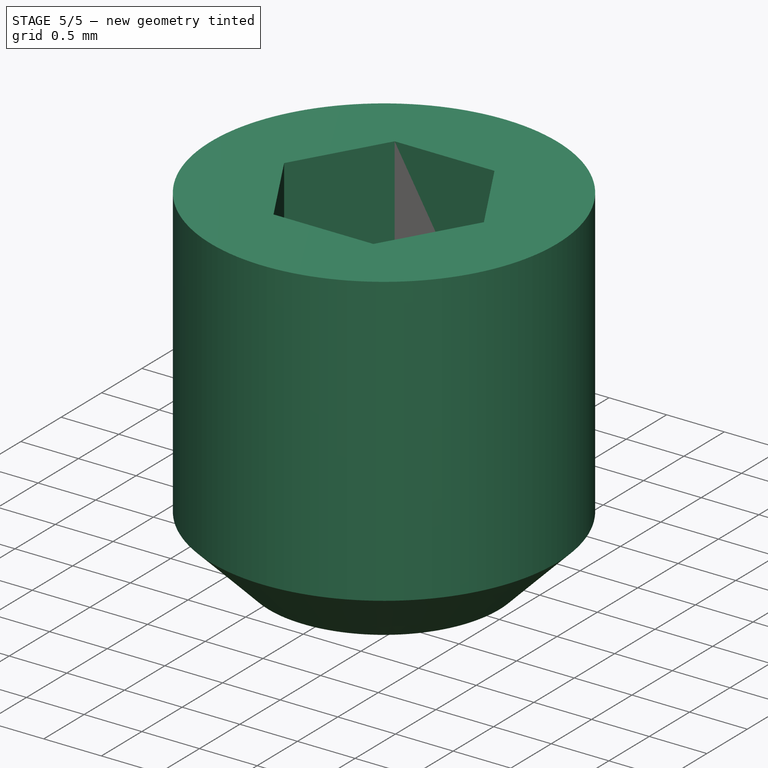
[diagram: stage 5 of 5 — iso view after this stage's code; geometry added in this stage tinted green]
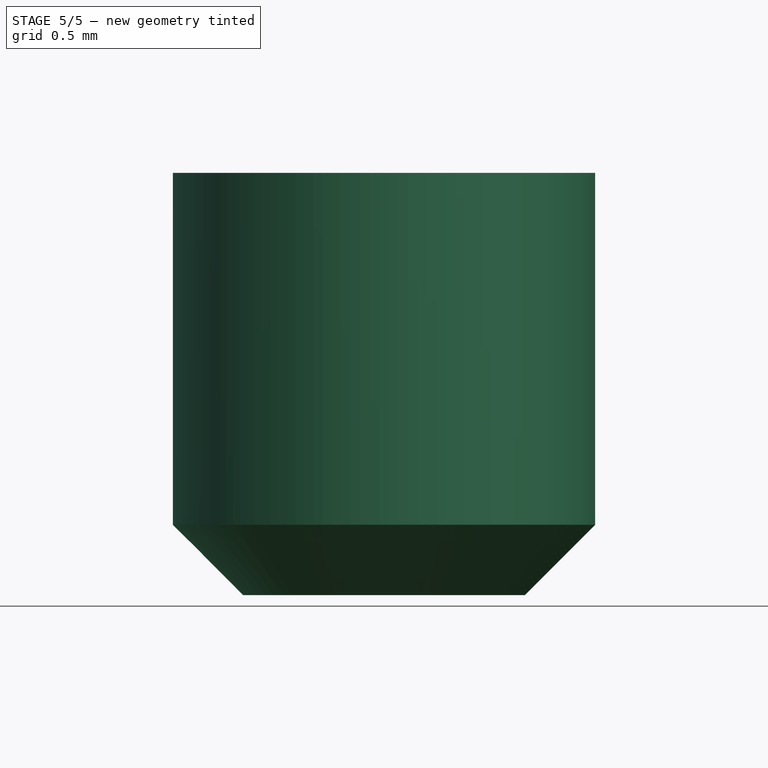
[diagram: stage 5 of 5 — front view after this stage's code; geometry added in this stage tinted green]
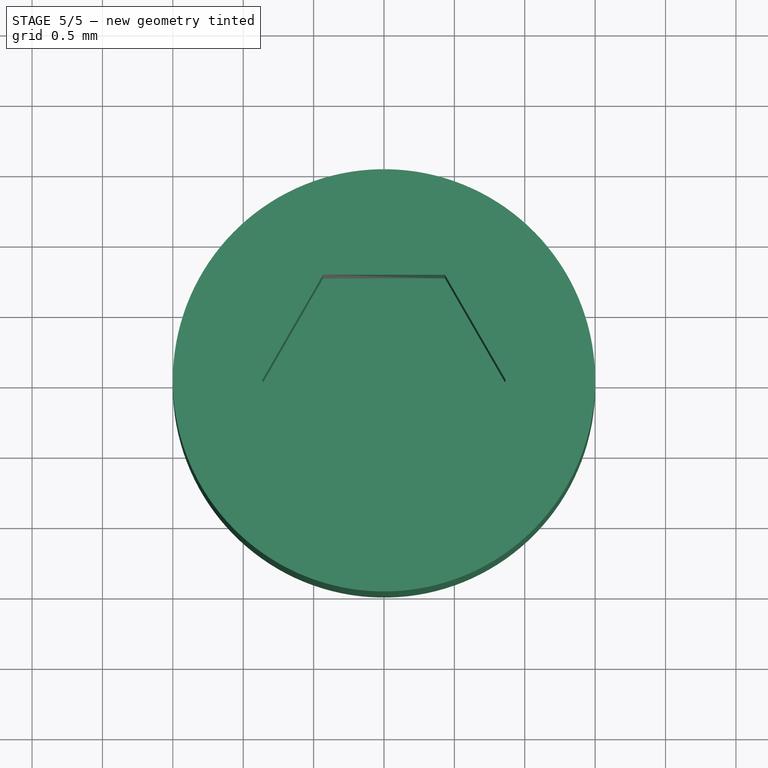
[diagram: stage 5 of 5 — top view after this stage's code; geometry added in this stage tinted green]
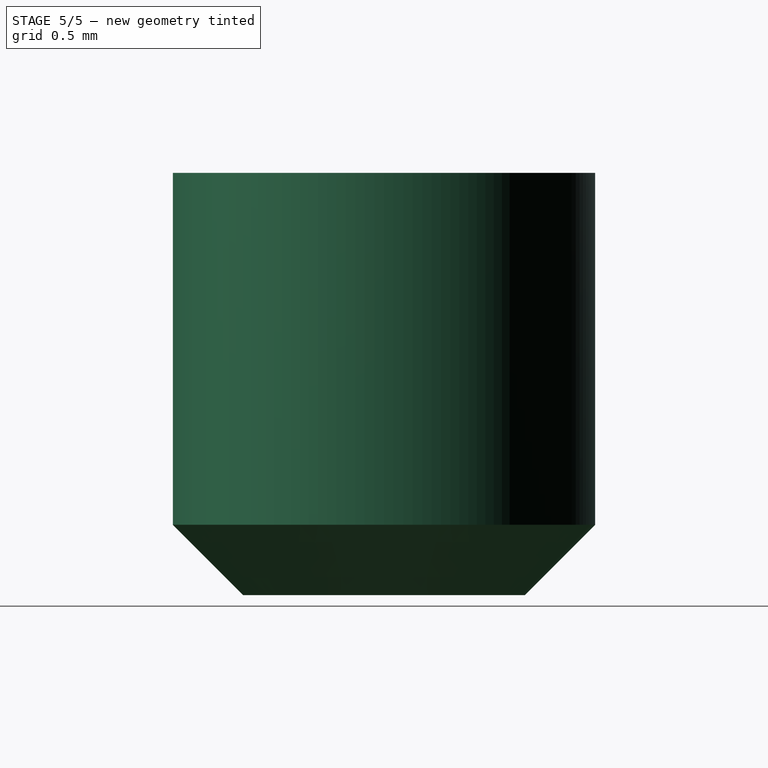
[diagram: stage 5 of 5 — right view after this stage's code; geometry added in this stage tinted green]
FEATURE [PartDesign::Plane] DatumPlane
  AttachmentOffset = pos=(0,0,-2) rot=(0,0,1;0rad)
  AttachmentSupport = -> [Pocket009]
  Length = 21.9821
  MapMode = 5
  MinimumLength = 10
  MinimumWidth = 10
  Placement = pos=(-1.1e-15,-5.5,1.17e-14) rot=(1,0,0;1.5708rad)
  ResizeMode = 0
  Support = -> [Pocket009]
  TreeRank = 71
  Width = 26.2964
FEATURE [Sketcher::SketchObject] Sketch015
  ArcFitTolerance = 1e-06
  AttachmentSupport = -> [DatumPlane]
  ExternalGeometry = -> [Pocket009]
  FullyConstrained = true
  MapMode = 5
  Placement = pos=(-1.1e-15,-5.5,1.17e-14) rot=(1,0,0;1.5708rad)
  Support = -> [DatumPlane]
  TreeRank = 72
  sketch-geometry (4):
    g0: LineSegment StartX=0 StartY=21.2964 StartZ=0 EndX=1.5 EndY=21.2964 EndZ=0
    g1: LineSegment StartX=1.5 StartY=21.2964 StartZ=0 EndX=1.5 EndY=19.0045 EndZ=0
    g2: LineSegment StartX=1.5 StartY=19.0045 StartZ=0 EndX=0 EndY=19.0045 EndZ=0
    g3: LineSegment StartX=0 StartY=19.0045 StartZ=0 EndX=0 EndY=21.2964 EndZ=0
  constraints (12):
    c: Coincident(g0,g1)
    c: Coincident(g1,g2)
    c: Coincident(g2,g3)
    c: Coincident(g3,g0)
    c: Horizontal(g0)
    c: Horizontal(g2)
    c: Vertical(g1)
    c: Vertical(g3)
    c: PointOnObject(g0,g-2)
    c: PointOnObject(g1,g-4)
    c: PointOnObject(g0,g-3)
    c: DistanceX(g0,g0) = 1.5
FEATURE [PartDesign::Groove] Groove001
  Angle = 360
  Axis = (0,2.4e-15,1)
  Base = (-1.1e-15,-5.5,1.17e-14)
  BaseFeature = -> Pocket009
  ClaimChildren = false
  Fit = 0
  FitJoin = 0
  InnerFit = 0
  InnerFitJoin = 0
  NewSolid = false
  Placement = pos=(0,0,0) rot=(1,0,0;1.5708rad)
  Profile = -> Sketch015
  ReferenceAxis = -> Sketch015 [V_Axis]
  Suppress = false
  TreeRank = 73
  _ProfileBasedVersion = 1
FEATURE [PartDesign::PolarPattern] PolarPattern
  Angle = 90
  Axis = -> Groove001 [Edge21]
  BaseFeature = -> Groove001
  ColoredElements = -> PolarPattern [Face6,Face7]
  CopyShape = false
  NewSolid = false
  Occurrences = 2
  OriginalSubs = -> [Groove001]
  Originals = -> [Groove001]
  ParallelTransform = true
  Placement = pos=(0,0,0) rot=(1,0,0;1.5708rad)
  SubTransform = true
  Suppress = false
  TreeRank = 74
FEATURE [PartDesign::Body] Body001  label="KP08Bearing"
  AutoGroupSolids = false
  ClaimAllChildren = false
  ExportMode = 0
  Group = -> [Binder,Sketch010,Revolution,Sketch011,Pocket007,Sketch012,Pad001,Sketch013,Pocket008,Mirrored002,Sketch014,Pocket009,DatumPlane,Sketch015,Groove001,PolarPattern]
  Origin = -> Origin002
  Tip = -> PolarPattern
  TreeRank = 58
  _ExportChildren = -> [Binder,Revolution,Pocket007,Pad001,Pocket008,Mirrored002,Pocket009,DatumPlane,Groove001,PolarPattern]
  _GroupVersion = 1
FEATURE [PartDesign::SubShapeBinder] Binder001  label="Binder001(Sketch015)"
  BindCopyOnChange = 0
  BindMode = 0
  ClaimChildren = false
  Context = -> Part [Body002.Binder001.]
  FillStyle = 0
  Fuse = false
  MakeFace = true
  OffsetFill = false
  OffsetIntersection = false
  OffsetJoinType = 0
  OffsetOpenResult = false
  PartialLoad = false
  Relative = true
  Support = -> [Body001[Sketch015.]]
  TreeRank = 85
  _Version = 8
FEATURE [PartDesign::SubShapeBinder] Binder002  label="Binder002(PolarPattern)"
  BindCopyOnChange = 0
  BindMode = 0
  ClaimChildren = false
  Context = -> Part [Body002.Binder002.]
  FillStyle = 0
  Fuse = false
  MakeFace = true
  OffsetFill = false
  OffsetIntersection = false
  OffsetJoinType = 0
  OffsetOpenResult = false
  PartialLoad = false
  Relative = true
  Support = -> [Body001[PolarPattern.Edge24]]
  TreeRank = 86
  _Version = 8
FEATURE [Sketcher::SketchObject] Sketch016
  ArcFitTolerance = 1e-06
  AttachmentSupport = -> [Binder001]
  ExternalGeometry = -> [Binder002,Binder001]
  FullyConstrained = true
  MapMode = 5
  Placement = pos=(0,-5.5,1.28e-14) rot=(0,0.707107,0.707107;3.14159rad)
  Support = -> [Binder001]
  TreeRank = 87
  sketch-geometry (4):
    g0: LineSegment StartX=0 StartY=19.2964 StartZ=0 EndX=-1.5 EndY=19.2964 EndZ=0
    g1: LineSegment StartX=-1.5 StartY=19.2964 StartZ=0 EndX=-1.5 EndY=22.2964 EndZ=0
    g2: LineSegment StartX=-1.5 StartY=22.2964 StartZ=0 EndX=0 EndY=22.2964 EndZ=0
    g3: LineSegment StartX=0 StartY=22.2964 StartZ=0 EndX=0 EndY=19.2964 EndZ=0
  constraints (12):
    c: Coincident(g0,g1)
    c: Coincident(g1,g2)
    c: Coincident(g2,g3)
    c: Coincident(g3,g0)
    c: Horizontal(g0)
    c: Horizontal(g2)
    c: Vertical(g1)
    c: Vertical(g3)
    c: PointOnObject(g0,g-2)
    c: PointOnObject(g-4,g1)
    c: PointOnObject(g0,g-3)
    c: DistanceY(g3,g3) = 3
FEATURE [PartDesign::Revolution] Revolution001
  Angle = 360
  Axis = (0,2.4e-15,1)
  Base = (0,-5.5,1.28e-14)
  ClaimChildren = false
  Fit = 0
  FitJoin = 0
  InnerFit = 0
  InnerFitJoin = 0
  NewSolid = false
  Profile = -> Sketch016
  ReferenceAxis = -> Sketch016 [V_Axis]
  Suppress = false
  TreeRank = 88
  _ProfileBasedVersion = 1
FEATURE [PartDesign::Chamfer] Chamfer001
  Angle = 45
  Base = -> Revolution001 [Edge1]
  BaseFeature = -> Revolution001
  ChamferType = 0
  FlipDirection = false
  NewSolid = false
  Size = 0.5
  Size2 = 1
  SupportTransform = false
  Suppress = false
  TreeRank = 89
FEATURE [Sketcher::SketchObject] Sketch017
  ArcFitTolerance = 1e-06
  AttachmentSupport = -> [Chamfer001]
  ExternalGeometry = -> [Chamfer001]
  FullyConstrained = true
  MapMode = 5
  Placement = pos=(0,5.32e-14,22.2964) rot=(0,0,1;0rad)
  Support = -> [Chamfer001]
  TreeRank = 90
  sketch-geometry (7):
    g0: LineSegment StartX=-0.433013 StartY=-4.75 StartZ=0 EndX=-0.866025 EndY=-5.5 EndZ=0
    g1: LineSegment StartX=-0.866025 StartY=-5.5 StartZ=0 EndX=-0.433013 EndY=-6.25 EndZ=0
    g2: LineSegment StartX=-0.433013 StartY=-6.25 StartZ=0 EndX=0.433013 EndY=-6.25 EndZ=0
    g3: LineSegment StartX=0.433013 StartY=-6.25 StartZ=0 EndX=0.866025 EndY=-5.5 EndZ=0
    g4: LineSegment StartX=0.866025 StartY=-5.5 StartZ=0 EndX=0.433013 EndY=-4.75 EndZ=0
    g5: LineSegment StartX=0.433013 StartY=-4.75 StartZ=0 EndX=-0.433013 EndY=-4.75 EndZ=0
    g6: Circle [constr] CenterX=0 CenterY=-5.5 CenterZ=0 NormalX=0 NormalY=0 NormalZ=1 AngleXU=0 Radius=0.866025
  constraints (16):
    c: Coincident(g0,g1)
    c: Coincident(g1,g2)
    c: Coincident(g2,g3)
    c: Coincident(g3,g4)
    c: Coincident(g4,g5)
    c: Coincident(g5,g0)
    c: Equal(g0, g1-g5) x5
    c: PointOnObject(g0,g6)
    c: PointOnObject(g1,g6)
    c: PointOnObject(g2,g6)
    c: PointOnObject(g3,g6)
    c: PointOnObject(g4,g6)
    c: PointOnObject(g5,g6)
    c: Coincident(g6,g-3)
    c: Horizontal(g5)
    c: DistanceY(g2,g4) = 1.5
FEATURE [PartDesign::Pocket] Pocket010
  BaseFeature = -> Chamfer001
  ClaimChildren = false
  Fit = 0
  FitJoin = 0
  InnerFit = 0
  InnerFitJoin = 0
  InnerTaperAngle = 0
  InnerTaperAngleRev = 0
  Length = 1.5
  Length2 = 100
  Linearize = true
  NewSolid = false
  Profile = -> Sketch017
  Suppress = false
  TreeRank = 91
  Type = 0
  _ProfileBasedVersion = 1
FEATURE [PartDesign::Body] Body002  label="DIN 913 M3x3"
  AutoGroupSolids = false
  ClaimAllChildren = false
  ExportMode = 0
  Group = -> [Binder001,Binder002,Sketch016,Revolution001,Chamfer001,Sketch017,Pocket010]
  Origin = -> Origin003
  Tip = -> Pocket010
  TreeRank = 84
  _ExportChildren = -> [Binder001,Binder002,Revolution001,Chamfer001,Pocket010]
  _GroupVersion = 1
FEATURE [App::Link] Link  label="Link(DIN 913 M3x3)"
  AutoLinkLabel = true
  AutoPlacement = true
  LinkPlacement = pos=(15.2964,-5.42e-14,15.2964) rot=(0,-1,0;1.5708rad)
  LinkedObject = -> Body002
  Placement = pos=(15.2964,-5.42e-14,15.2964) rot=(0,-1,0;1.5708rad)
  ShowElement = false
  SyncGroupVisibility = false
  TreeRank = 92
  _LinkVersion = 1
FEATURE [App::Part] Part  label="KP08"
  ClaimAllChildren = false
  ExportMode = 1
  Group = -> [Body,Body001,Body002,Link]
  Origin = -> Origin
  TreeRank = 3
  _ExportChildren = -> [Body,Body001,Body002,Link]
  _GroupVersion = 1
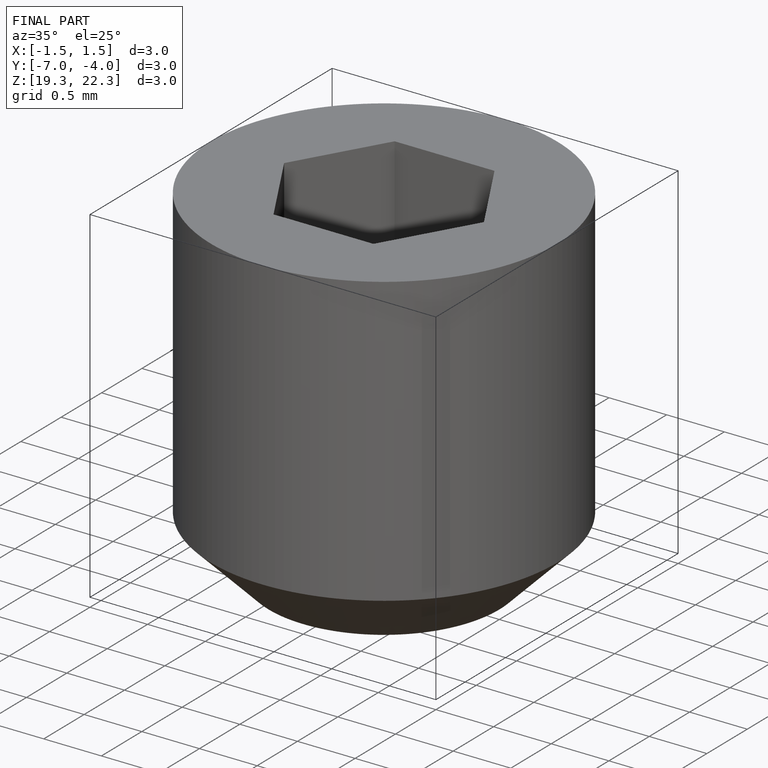
[diagram: finished part — iso view with bounding-box wireframe]
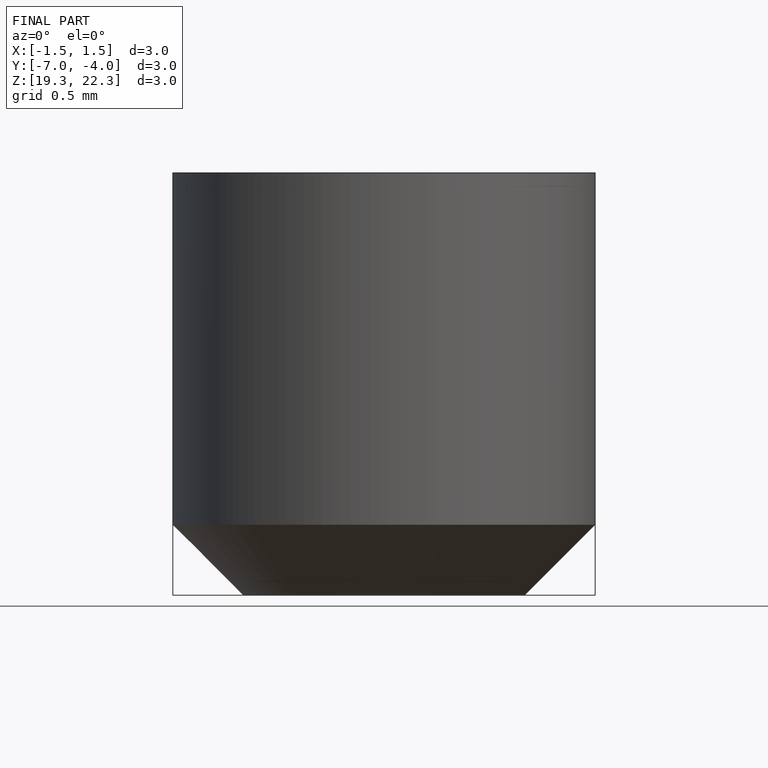
[diagram: finished part — front view with bounding-box wireframe]
